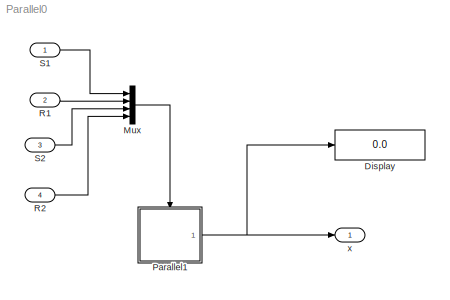
MODEL Parallel0
KIND model
BLOCK [Display] Display
  Decimation = 1
  Ports = [1]
  SID = 1
BLOCK [Mux] Mux
  DisplayOption = bar
  Ports = [4, 1]
  SID = 8
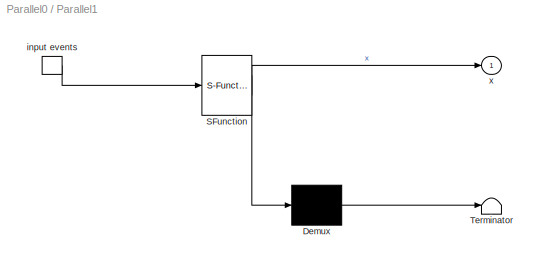
BLOCK [SubSystem] Parallel1
  ErrorFcn = Stateflow.Translate.translate
  PermitHierarchicalResolution = ExplicitOnly
  Ports = [0, 1, 0, 1]
  RequestExecContextInheritance = off
  SFBlockType = Chart
  SID = 2
  TreatAsAtomicUnit = on
  Variant = off
BLOCK [Demux] Parallel1/ Demux 
  Outputs = 1
  Ports = [1, 1]
  SID = 2::13
BLOCK [S-Function] Parallel1/ SFunction 
  EnableBusSupport = on
  FunctionName = sf_sfun
  PortCounts = [1 2]
  Ports = [1, 2]
  SFcnIsStateOwnerBlock = off
  SFunctionDeploymentMode = off
  SID = 2::12
  Tag = Stateflow S-Function Parallel0 1
BLOCK [Terminator] Parallel1/ Terminator 
  SID = 2::14
BLOCK [TriggerPort] Parallel1/ input events 
  Ports = [0, 1]
  SID = 2::1
  ShowOutputPort = on
  TriggerType = either
  VariantControl = (inherit)
BLOCK [Outport] Parallel1/x
  IconDisplay = Port number
  SID = 2::5
BLOCK [Inport] R1
  IconDisplay = Port number
  Port = 2
  SID = 5
BLOCK [Inport] R2
  IconDisplay = Port number
  Port = 4
  SID = 7
BLOCK [Inport] S1
  IconDisplay = Port number
  SID = 4
BLOCK [Inport] S2
  IconDisplay = Port number
  Port = 3
  SID = 6
BLOCK [Outport] x
  IconDisplay = Port number
  SID = 3
LINE Mux:1 -> Parallel1:trigger
LINE Parallel1/ Demux :1 -> Parallel1/ Terminator :1
LINE Parallel1/ SFunction :1 -> Parallel1/ Demux :1
LINE Parallel1/ SFunction :2 -> Parallel1/x:1
LINE Parallel1/ input events :1 -> Parallel1/ SFunction :1
NET Parallel1:1 -> Display:1, x:1
LINE R1:1 -> Mux:2
LINE R2:1 -> Mux:4
LINE S1:1 -> Mux:1
LINE S2:1 -> Mux:3
note: NET lines group one-source signal fan-out (src -> all destinations, sorted); 1:1 wires keep LINE
CHART Parallel1 states=6 transitions=6
  STATE_LABEL 'N1/\\nen:x=10000;\\nex:x=10000;\\ndu:x=1000000;'
  STATE_LABEL 'N2/\\nen:x=100000;\\nex:x=100000;'
  STATE_LABEL 'A/\\nen: x=10;'
  STATE_LABEL 'B/\\nen: x=10;'
  STATE_LABEL 'C/\\nen: x=1000;'
  STATE_LABEL 'D/\\nen: x=1000;'
